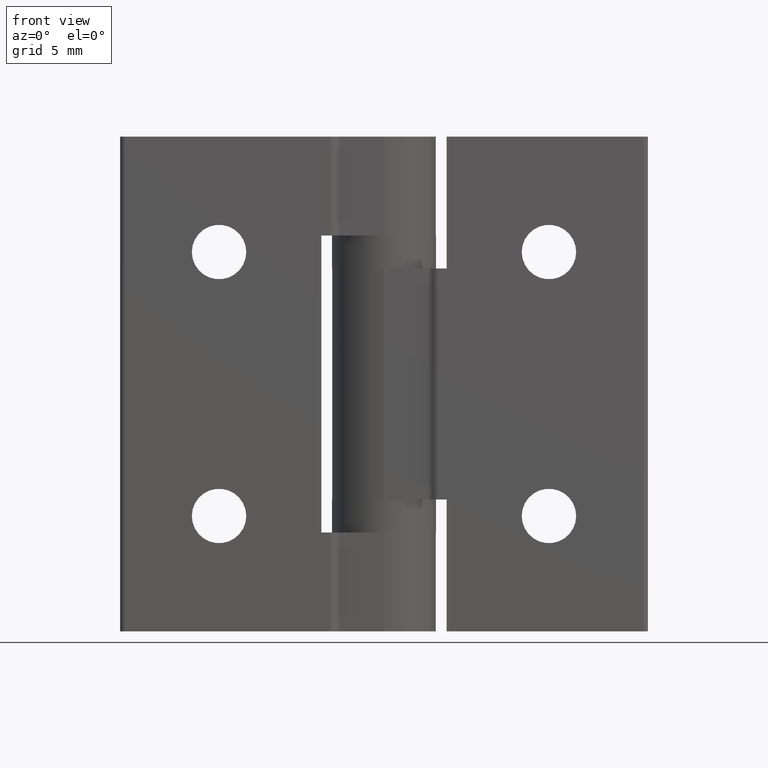
[diagram: clean part render]
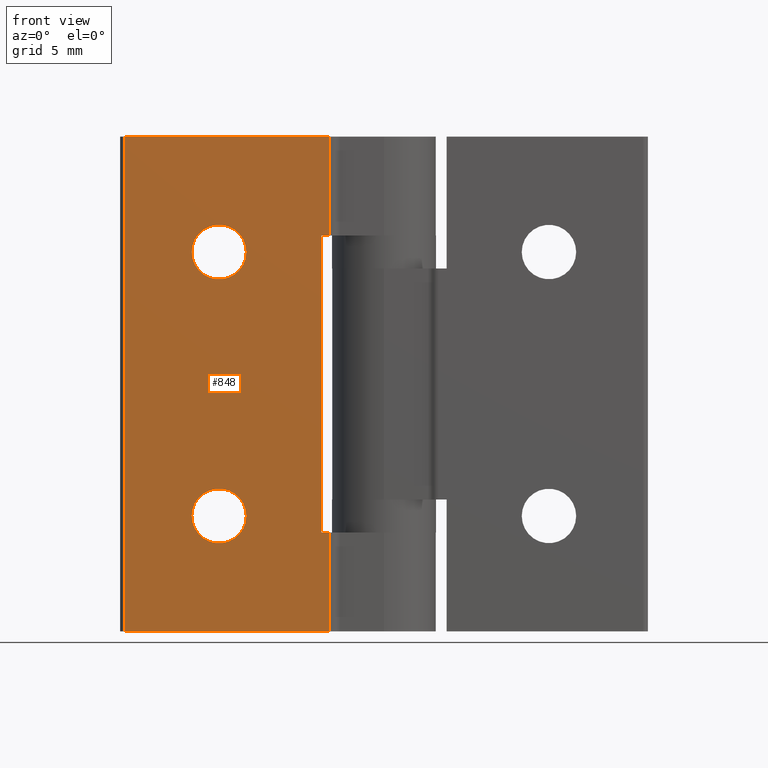
[diagram: same view with one face highlighted and labeled with its STEP entity id]
A machine part, front view. The second image highlights one B-rep face of the part: STEP entity #848.
In plain terms, the highlighted planar face has unit normal (0, -1, 0).
Its self-contained STEP definition (entity closure, byte-faithful):
#51=FACE_BOUND('',#158,.T.);
#52=FACE_BOUND('',#159,.T.);
#81=PLANE('',#906);
#106=FACE_OUTER_BOUND('',#157,.T.);
#157=EDGE_LOOP('',(#606,#607,#608,#609,#610,#611,#612,#613));
#158=EDGE_LOOP('',(#614));
#159=EDGE_LOOP('',(#615));
#237=LINE('',#1302,#298);
#239=LINE('',#1308,#300);
#240=LINE('',#1310,#301);
#241=LINE('',#1312,#302);
#242=LINE('',#1314,#303);
#243=LINE('',#1316,#304);
#244=LINE('',#1318,#305);
#245=LINE('',#1319,#306);
#298=VECTOR('',#1019,30.);
#300=VECTOR('',#1025,12.4177929985155);
#301=VECTOR('',#1026,6.);
#302=VECTOR('',#1027,0.517792998515516);
#303=VECTOR('',#1028,18.);
#304=VECTOR('',#1029,0.517792998515511);
#305=VECTOR('',#1030,6.);
#306=VECTOR('',#1031,12.4177929985155);
#361=CIRCLE('',#907,1.65);
#362=CIRCLE('',#908,1.65);
#410=VERTEX_POINT('',#1299);
#411=VERTEX_POINT('',#1301);
#413=VERTEX_POINT('',#1307);
#414=VERTEX_POINT('',#1309);
#415=VERTEX_POINT('',#1311);
#416=VERTEX_POINT('',#1313);
#417=VERTEX_POINT('',#1315);
#418=VERTEX_POINT('',#1317);
#419=VERTEX_POINT('',#1320);
#420=VERTEX_POINT('',#1322);
#492=EDGE_CURVE('',#410,#411,#237,.T.);
#495=EDGE_CURVE('',#413,#410,#239,.T.);
#496=EDGE_CURVE('',#414,#413,#240,.T.);
#497=EDGE_CURVE('',#414,#415,#241,.T.);
#498=EDGE_CURVE('',#415,#416,#242,.T.);
#499=EDGE_CURVE('',#416,#417,#243,.T.);
#500=EDGE_CURVE('',#418,#417,#244,.T.);
#501=EDGE_CURVE('',#418,#411,#245,.T.);
#502=EDGE_CURVE('',#419,#419,#361,.T.);
#503=EDGE_CURVE('',#420,#420,#362,.T.);
#606=ORIENTED_EDGE('',*,*,#492,.F.);
#607=ORIENTED_EDGE('',*,*,#495,.F.);
#608=ORIENTED_EDGE('',*,*,#496,.F.);
#609=ORIENTED_EDGE('',*,*,#497,.T.);
#610=ORIENTED_EDGE('',*,*,#498,.T.);
#611=ORIENTED_EDGE('',*,*,#499,.T.);
#612=ORIENTED_EDGE('',*,*,#500,.F.);
#613=ORIENTED_EDGE('',*,*,#501,.T.);
#614=ORIENTED_EDGE('',*,*,#502,.T.);
#615=ORIENTED_EDGE('',*,*,#503,.T.);
#848=ADVANCED_FACE('',(#106,#51,#52),#81,.T.);
#906=AXIS2_PLACEMENT_3D('',#1306,#1023,#1024);
#907=AXIS2_PLACEMENT_3D('',#1321,#1032,#1033);
#908=AXIS2_PLACEMENT_3D('',#1323,#1034,#1035);
#1019=DIRECTION('',(0.,0.,1.));
#1023=DIRECTION('center_axis',(6.93889390390723E-17,-1.,0.));
#1024=DIRECTION('ref_axis',(-1.,-6.93889390390723E-17,0.));
#1025=DIRECTION('',(-1.,-6.93889390390723E-17,0.));
#1026=DIRECTION('',(0.,0.,-1.));
#1027=DIRECTION('',(-1.,-6.93889390390723E-17,0.));
#1028=DIRECTION('',(2.46716227694479E-16,1.71193772834421E-32,1.));
#1029=DIRECTION('',(1.,6.93889390390723E-17,-2.17565612461828E-16));
#1030=DIRECTION('',(0.,0.,-1.));
#1031=DIRECTION('',(-1.,-6.93889390390723E-17,0.));
#1032=DIRECTION('center_axis',(-6.93889390390723E-17,1.,0.));
#1033=DIRECTION('ref_axis',(1.,0.,0.));
#1034=DIRECTION('center_axis',(-6.93889390390723E-17,1.,0.));
#1035=DIRECTION('ref_axis',(1.,0.,0.));
#1299=CARTESIAN_POINT('',(-15.7,2.08166817117216E-17,-30.));
#1301=CARTESIAN_POINT('',(-15.7,2.08166817117216E-17,0.));
#1302=CARTESIAN_POINT('',(-15.7,3.46944695195361E-17,0.));
#1306=CARTESIAN_POINT('Origin',(1.65327317884893E-16,1.11022302462516E-15,
0.));
#1307=CARTESIAN_POINT('',(-3.28220700148449,8.82474163085533E-16,-30.));
#1308=CARTESIAN_POINT('',(1.65327317884893E-16,1.11022302462516E-15,-30.));
#1309=CARTESIAN_POINT('',(-3.28220700148449,9.0205620750794E-16,-24.));
#1310=CARTESIAN_POINT('',(-3.28220700148449,9.0205620750794E-16,0.));
#1311=CARTESIAN_POINT('',(-3.8,1.11022302462516E-15,-24.));
#1312=CARTESIAN_POINT('',(3.20293429215495,1.38777878078145E-15,-24.));
#1313=CARTESIAN_POINT('',(-3.8,1.11022302462516E-15,-6.));
#1314=CARTESIAN_POINT('',(-3.8,8.32667268468867E-16,-12.));
#1315=CARTESIAN_POINT('',(-3.28220700148449,9.0205620750794E-16,-6.));
#1316=CARTESIAN_POINT('',(-1.9,1.11022302462516E-15,-6.));
#1317=CARTESIAN_POINT('',(-3.28220700148449,8.82474163085533E-16,0.));
#1318=CARTESIAN_POINT('',(-3.28220700148449,9.0205620750794E-16,0.));
#1319=CARTESIAN_POINT('',(1.65327317884893E-16,1.11022302462516E-15,0.));
#1320=CARTESIAN_POINT('',(-11.65,0.,-7.));
#1321=CARTESIAN_POINT('Origin',(-10.,0.,-7.));
#1322=CARTESIAN_POINT('',(-11.65,0.,-23.));
#1323=CARTESIAN_POINT('Origin',(-10.,0.,-23.));